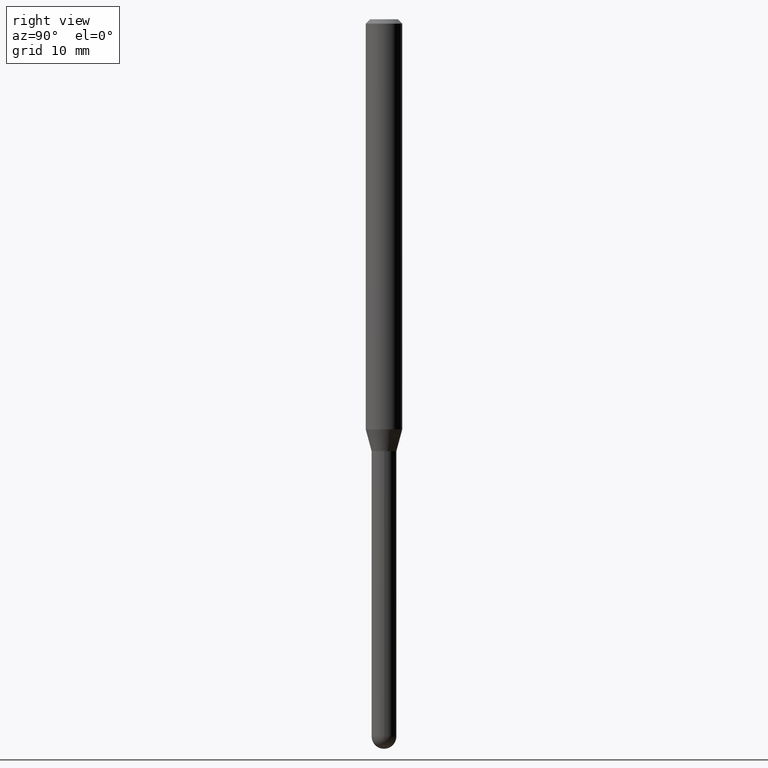
[diagram: clean part render]
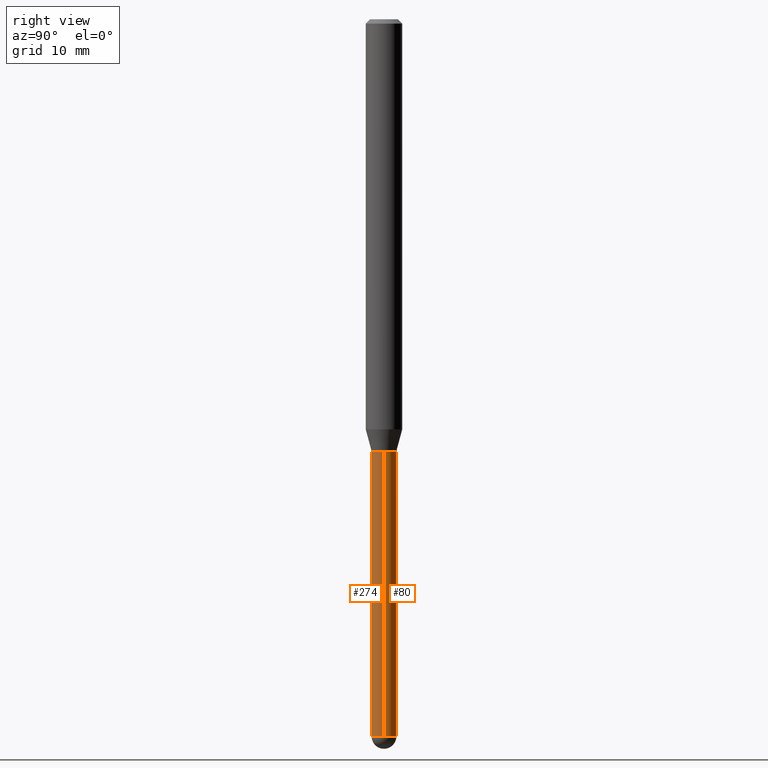
[diagram: same view with one multi-face feature highlighted, each face labeled with its STEP entity id]
A machine part, right view. The highlighted faces form ONE feature: a constant-radius fillet chain: 2 tangent blend faces with common blend radius 1.0795 mm. The faces share edges in the B-rep.
Their STEP definitions:
[1] entity #274 (Cylinder):
#8 = DIRECTION ( 'NONE',  ( 1.000000000000000000, -6.982962677686276177E-15, 0.000000000000000000 ) ) ;
#25 = EDGE_CURVE ( 'NONE', #257, #106, #178, .T. ) ;
#29 = CARTESIAN_POINT ( 'NONE',  ( 6.009739591199973545E-29, -8.580315390207031617E-15, -2.457500000000000018 ) ) ;
#47 = CARTESIAN_POINT ( 'NONE',  ( -0.04250000000000000999, -6.571873223149400401E-15, -2.457500000000000018 ) ) ;
#55 = CARTESIAN_POINT ( 'NONE',  ( -3.019806626979823514E-16, -0.04250000000000855871, -2.457500000000000018 ) ) ;
#68 = VERTEX_POINT ( 'NONE', #47 ) ;
#69 = AXIS2_PLACEMENT_3D ( 'NONE', #199, #329, #8 ) ;
#78 = CIRCLE ( 'NONE', #413, 0.04250000000000000999 ) ;
#94 = DIRECTION ( 'NONE',  ( -2.445468806185136877E-29, 3.491481338843145188E-15, 1.000000000000000000 ) ) ;
#106 = VERTEX_POINT ( 'NONE', #202 ) ;
#110 = ORIENTED_EDGE ( 'NONE', *, *, #140, .T. ) ;
#112 = CARTESIAN_POINT ( 'NONE',  ( -0.04249999999999999611, -6.571873223149400401E-15, -1.479999999999999982 ) ) ;
#136 = VERTEX_POINT ( 'NONE', #55 ) ;
#140 = EDGE_CURVE ( 'NONE', #483, #106, #290, .T. ) ;
#143 = ORIENTED_EDGE ( 'NONE', *, *, #207, .T. ) ;
#149 = FACE_OUTER_BOUND ( 'NONE', #419, .T. ) ;
#178 = CIRCLE ( 'NONE', #69, 0.04249999999999999611 ) ;
#199 = CARTESIAN_POINT ( 'NONE',  ( 3.619293833154002365E-29, -5.167392381487854879E-15, -1.479999999999999982 ) ) ;
#202 = CARTESIAN_POINT ( 'NONE',  ( 0.04249999999999999611, -5.464168295289522318E-15, -1.479999999999999982 ) ) ;
#207 = EDGE_CURVE ( 'NONE', #68, #136, #78, .T. ) ;
#212 = DIRECTION ( 'NONE',  ( -2.445468806185136597E-29, 3.491481338843145583E-15, 1.000000000000000000 ) ) ;
#229 = DIRECTION ( 'NONE',  ( 1.000000000000000000, -6.982962677686266711E-15, 4.876176775795935793E-29 ) ) ;
#232 = CARTESIAN_POINT ( 'NONE',  ( 0.04250000000000000999, -7.170629799649109504E-15, -2.457500000000000018 ) ) ;
#237 = LINE ( 'NONE', #443, #347 ) ;
#254 = VECTOR ( 'NONE', #94, 39.37007874015748143 ) ;
#255 = CARTESIAN_POINT ( 'NONE',  ( 6.009739591199973545E-29, -8.580315390207031617E-15, -2.457500000000000018 ) ) ;
#257 = VERTEX_POINT ( 'NONE', #112 ) ;
#263 = CYLINDRICAL_SURFACE ( 'NONE', #286, 0.04250000000000000999 ) ;
#265 = DIRECTION ( 'NONE',  ( 1.000000000000000000, -6.982962677686273810E-15, 0.000000000000000000 ) ) ;
#266 = ORIENTED_EDGE ( 'NONE', *, *, #344, .T. ) ;
#274 = ADVANCED_FACE ( 'NONE', ( #149 ), #263, .T. ) ;
#277 = DIRECTION ( 'NONE',  ( -2.445468806185136877E-29, 3.491481338843145188E-15, 1.000000000000000000 ) ) ;
#286 = AXIS2_PLACEMENT_3D ( 'NONE', #350, #425, #229 ) ;
#290 = LINE ( 'NONE', #381, #254 ) ;
#303 = DIRECTION ( 'NONE',  ( 1.000000000000000000, -6.982962677686273810E-15, 0.000000000000000000 ) ) ;
#329 = DIRECTION ( 'NONE',  ( -2.445468806185136597E-29, 3.491481338843145583E-15, 1.000000000000000000 ) ) ;
#337 = ORIENTED_EDGE ( 'NONE', *, *, #501, .F. ) ;
#344 = EDGE_CURVE ( 'NONE', #136, #483, #437, .T. ) ;
#347 = VECTOR ( 'NONE', #277, 39.37007874015748143 ) ;
#348 = AXIS2_PLACEMENT_3D ( 'NONE', #29, #463, #265 ) ;
#350 = CARTESIAN_POINT ( 'NONE',  ( 0.000000000000000000, 0.000000000000000000, 0.000000000000000000 ) ) ;
#381 = CARTESIAN_POINT ( 'NONE',  ( 0.04250000000000000999, -2.967759138016664042E-16, 2.072375129713273202E-30 ) ) ;
#413 = AXIS2_PLACEMENT_3D ( 'NONE', #255, #212, #303 ) ;
#419 = EDGE_LOOP ( 'NONE', ( #337, #143, #266, #110, #493 ) ) ;
#425 = DIRECTION ( 'NONE',  ( -2.445468806185136597E-29, 3.491481338843145583E-15, 1.000000000000000000 ) ) ;
#437 = CIRCLE ( 'NONE', #348, 0.04250000000000000999 ) ;
#443 = CARTESIAN_POINT ( 'NONE',  ( -0.04250000000000000999, 3.019806626980426500E-16, -2.090547413358335560E-30 ) ) ;
#463 = DIRECTION ( 'NONE',  ( -2.445468806185136597E-29, 3.491481338843145583E-15, 1.000000000000000000 ) ) ;
#483 = VERTEX_POINT ( 'NONE', #232 ) ;
#493 = ORIENTED_EDGE ( 'NONE', *, *, #25, .F. ) ;
#501 = EDGE_CURVE ( 'NONE', #68, #257, #237, .T. ) ;
[2] entity #80 (Cylinder):
#21 = CIRCLE ( 'NONE', #374, 0.04249999999999999611 ) ;
#32 = VERTEX_POINT ( 'NONE', #477 ) ;
#47 = CARTESIAN_POINT ( 'NONE',  ( -0.04250000000000000999, -6.571873223149400401E-15, -2.457500000000000018 ) ) ;
#62 = AXIS2_PLACEMENT_3D ( 'NONE', #504, #188, #88 ) ;
#68 = VERTEX_POINT ( 'NONE', #47 ) ;
#74 = ORIENTED_EDGE ( 'NONE', *, *, #481, .F. ) ;
#76 = DIRECTION ( 'NONE',  ( 1.000000000000000000, -6.982962677686276177E-15, 0.000000000000000000 ) ) ;
#80 = ADVANCED_FACE ( 'NONE', ( #166 ), #475, .T. ) ;
#87 = ORIENTED_EDGE ( 'NONE', *, *, #377, .T. ) ;
#88 = DIRECTION ( 'NONE',  ( 1.000000000000000000, -6.982962677686273810E-15, 0.000000000000000000 ) ) ;
#90 = DIRECTION ( 'NONE',  ( -2.445468806185136597E-29, 3.491481338843145583E-15, 1.000000000000000000 ) ) ;
#94 = DIRECTION ( 'NONE',  ( -2.445468806185136877E-29, 3.491481338843145188E-15, 1.000000000000000000 ) ) ;
#106 = VERTEX_POINT ( 'NONE', #202 ) ;
#112 = CARTESIAN_POINT ( 'NONE',  ( -0.04249999999999999611, -6.571873223149400401E-15, -1.479999999999999982 ) ) ;
#140 = EDGE_CURVE ( 'NONE', #483, #106, #290, .T. ) ;
#146 = ORIENTED_EDGE ( 'NONE', *, *, #140, .F. ) ;
#166 = FACE_OUTER_BOUND ( 'NONE', #502, .T. ) ;
#169 = DIRECTION ( 'NONE',  ( 1.000000000000000000, -6.982962677686266711E-15, 4.876176775795935793E-29 ) ) ;
#188 = DIRECTION ( 'NONE',  ( -2.445468806185136597E-29, 3.491481338843145583E-15, 1.000000000000000000 ) ) ;
#202 = CARTESIAN_POINT ( 'NONE',  ( 0.04249999999999999611, -5.464168295289522318E-15, -1.479999999999999982 ) ) ;
#217 = DIRECTION ( 'NONE',  ( 1.000000000000000000, -6.982962677686273810E-15, 0.000000000000000000 ) ) ;
#226 = DIRECTION ( 'NONE',  ( -2.445468806185136597E-29, 3.491481338843145583E-15, 1.000000000000000000 ) ) ;
#232 = CARTESIAN_POINT ( 'NONE',  ( 0.04250000000000000999, -7.170629799649109504E-15, -2.457500000000000018 ) ) ;
#237 = LINE ( 'NONE', #443, #347 ) ;
#254 = VECTOR ( 'NONE', #94, 39.37007874015748143 ) ;
#257 = VERTEX_POINT ( 'NONE', #112 ) ;
#261 = AXIS2_PLACEMENT_3D ( 'NONE', #423, #226, #217 ) ;
#277 = DIRECTION ( 'NONE',  ( -2.445468806185136877E-29, 3.491481338843145188E-15, 1.000000000000000000 ) ) ;
#290 = LINE ( 'NONE', #381, #254 ) ;
#347 = VECTOR ( 'NONE', #277, 39.37007874015748143 ) ;
#364 = CIRCLE ( 'NONE', #62, 0.04250000000000000999 ) ;
#374 = AXIS2_PLACEMENT_3D ( 'NONE', #438, #440, #76 ) ;
#377 = EDGE_CURVE ( 'NONE', #32, #68, #388, .T. ) ;
#381 = CARTESIAN_POINT ( 'NONE',  ( 0.04250000000000000999, -2.967759138016664042E-16, 2.072375129713273202E-30 ) ) ;
#382 = EDGE_CURVE ( 'NONE', #483, #32, #364, .T. ) ;
#388 = CIRCLE ( 'NONE', #261, 0.04250000000000000999 ) ;
#423 = CARTESIAN_POINT ( 'NONE',  ( 6.009739591199973545E-29, -8.580315390207031617E-15, -2.457500000000000018 ) ) ;
#427 = ORIENTED_EDGE ( 'NONE', *, *, #382, .T. ) ;
#438 = CARTESIAN_POINT ( 'NONE',  ( 3.619293833154002365E-29, -5.167392381487854879E-15, -1.479999999999999982 ) ) ;
#440 = DIRECTION ( 'NONE',  ( -2.445468806185136597E-29, 3.491481338843145583E-15, 1.000000000000000000 ) ) ;
#441 = CARTESIAN_POINT ( 'NONE',  ( 0.000000000000000000, 0.000000000000000000, 0.000000000000000000 ) ) ;
#443 = CARTESIAN_POINT ( 'NONE',  ( -0.04250000000000000999, 3.019806626980426500E-16, -2.090547413358335560E-30 ) ) ;
#465 = AXIS2_PLACEMENT_3D ( 'NONE', #441, #90, #169 ) ;
#475 = CYLINDRICAL_SURFACE ( 'NONE', #465, 0.04250000000000000999 ) ;
#477 = CARTESIAN_POINT ( 'NONE',  ( 2.967759138017263083E-16, 0.04249999999999140576, -2.457500000000000462 ) ) ;
#481 = EDGE_CURVE ( 'NONE', #106, #257, #21, .T. ) ;
#483 = VERTEX_POINT ( 'NONE', #232 ) ;
#501 = EDGE_CURVE ( 'NONE', #68, #257, #237, .T. ) ;
#502 = EDGE_LOOP ( 'NONE', ( #87, #505, #74, #146, #427 ) ) ;
#504 = CARTESIAN_POINT ( 'NONE',  ( 6.009739591199973545E-29, -8.580315390207031617E-15, -2.457500000000000018 ) ) ;
#505 = ORIENTED_EDGE ( 'NONE', *, *, #501, .T. ) ;